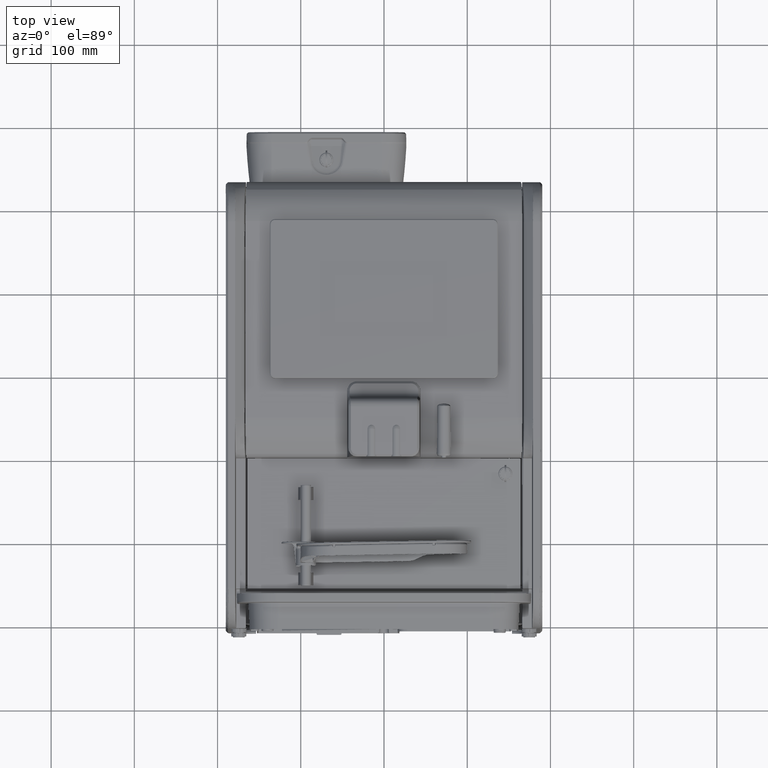
[diagram: clean part render]
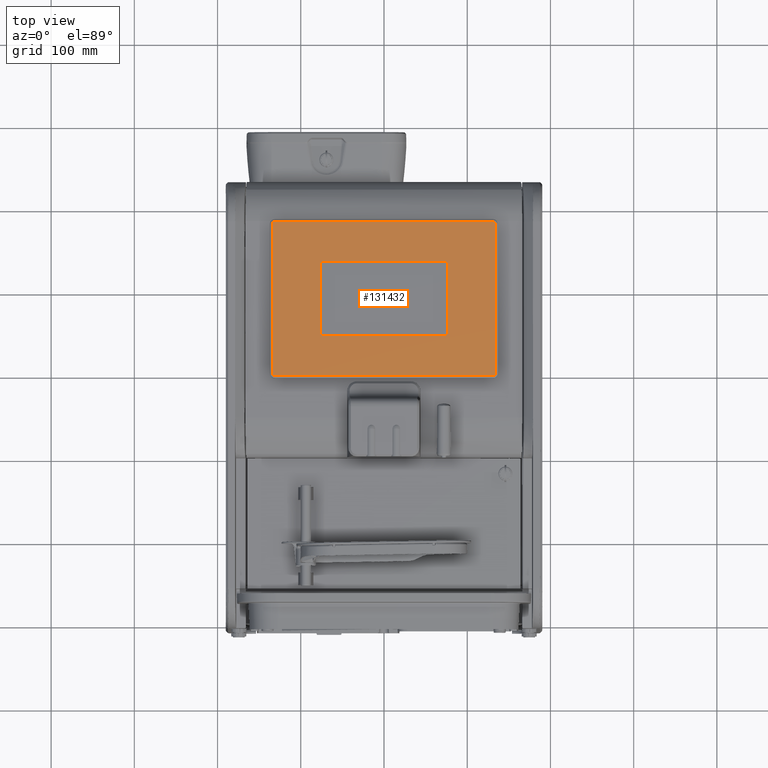
[diagram: same view with one face highlighted and labeled with its STEP entity id]
A machine part, top view. The second image highlights one B-rep face of the part: STEP entity #131432.
In plain terms, the highlighted planar face has unit normal (0, 0.1219, 0.9925).
Its self-contained STEP definition (entity closure, byte-faithful):
#2220=FACE_BOUND('',#33447,.T.);
#19583=CIRCLE('',#142121,3.);
#19584=CIRCLE('',#142124,3.);
#19585=CIRCLE('',#142127,3.);
#19586=CIRCLE('',#142130,3.);
#27201=FACE_OUTER_BOUND('',#33446,.T.);
#33446=EDGE_LOOP('',(#120800,#120801,#120802,#120803,#120804,#120805,#120806,
#120807));
#33447=EDGE_LOOP('',(#120808,#120809,#120810,#120811));
#42481=LINE('',#315502,#52340);
#42483=LINE('',#315506,#52342);
#42486=LINE('',#315511,#52345);
#42487=LINE('',#315513,#52346);
#42534=LINE('',#315651,#52393);
#42537=LINE('',#315659,#52396);
#42540=LINE('',#315667,#52399);
#42543=LINE('',#315674,#52402);
#52340=VECTOR('',#171083,10.);
#52342=VECTOR('',#171087,10.);
#52345=VECTOR('',#171092,10.);
#52346=VECTOR('',#171095,10.);
#52393=VECTOR('',#171238,10.);
#52396=VECTOR('',#171247,10.);
#52399=VECTOR('',#171256,10.);
#52402=VECTOR('',#171265,10.);
#67189=VERTEX_POINT('',#315499);
#67190=VERTEX_POINT('',#315501);
#67191=VERTEX_POINT('',#315505);
#67192=VERTEX_POINT('',#315509);
#67233=VERTEX_POINT('',#315644);
#67234=VERTEX_POINT('',#315646);
#67235=VERTEX_POINT('',#315650);
#67236=VERTEX_POINT('',#315654);
#67237=VERTEX_POINT('',#315658);
#67238=VERTEX_POINT('',#315662);
#67239=VERTEX_POINT('',#315666);
#67240=VERTEX_POINT('',#315670);
#88171=EDGE_CURVE('',#67190,#67189,#42481,.T.);
#88173=EDGE_CURVE('',#67191,#67190,#42483,.T.);
#88176=EDGE_CURVE('',#67189,#67192,#42486,.T.);
#88177=EDGE_CURVE('',#67192,#67191,#42487,.T.);
#88243=EDGE_CURVE('',#67234,#67233,#19583,.T.);
#88245=EDGE_CURVE('',#67235,#67234,#42534,.T.);
#88247=EDGE_CURVE('',#67236,#67235,#19584,.T.);
#88249=EDGE_CURVE('',#67237,#67236,#42537,.T.);
#88251=EDGE_CURVE('',#67238,#67237,#19585,.T.);
#88253=EDGE_CURVE('',#67239,#67238,#42540,.T.);
#88255=EDGE_CURVE('',#67240,#67239,#19586,.T.);
#88257=EDGE_CURVE('',#67233,#67240,#42543,.T.);
#120800=ORIENTED_EDGE('',*,*,#88249,.T.);
#120801=ORIENTED_EDGE('',*,*,#88247,.T.);
#120802=ORIENTED_EDGE('',*,*,#88245,.T.);
#120803=ORIENTED_EDGE('',*,*,#88243,.T.);
#120804=ORIENTED_EDGE('',*,*,#88257,.T.);
#120805=ORIENTED_EDGE('',*,*,#88255,.T.);
#120806=ORIENTED_EDGE('',*,*,#88253,.T.);
#120807=ORIENTED_EDGE('',*,*,#88251,.T.);
#120808=ORIENTED_EDGE('',*,*,#88176,.T.);
#120809=ORIENTED_EDGE('',*,*,#88177,.T.);
#120810=ORIENTED_EDGE('',*,*,#88173,.T.);
#120811=ORIENTED_EDGE('',*,*,#88171,.T.);
#125890=PLANE('',#142132);
#131432=ADVANCED_FACE('',(#27201,#2220),#125890,.T.);
#142121=AXIS2_PLACEMENT_3D('',#315647,#171233,#171234);
#142124=AXIS2_PLACEMENT_3D('',#315655,#171242,#171243);
#142127=AXIS2_PLACEMENT_3D('',#315663,#171251,#171252);
#142130=AXIS2_PLACEMENT_3D('',#315671,#171260,#171261);
#142132=AXIS2_PLACEMENT_3D('',#315675,#171266,#171267);
#171083=DIRECTION('',(5.59525203692155E-10,0.992546151641325,-0.121869343405123));
#171087=DIRECTION('',(-1.,5.63729146113913E-10,1.39333251422214E-14));
#171092=DIRECTION('',(1.,-5.63729030119429E-10,-1.39475674739103E-14));
#171095=DIRECTION('',(-5.59525496498228E-10,-0.992546151641325,0.121869343405123));
#171233=DIRECTION('center_axis',(6.8715130363483E-11,0.121869343405123,
0.992546151641325));
#171234=DIRECTION('ref_axis',(1.,-5.63729146113913E-10,-1.39333251422214E-14));
#171238=DIRECTION('',(-5.59525496498228E-10,-0.992546151641325,0.121869343405123));
#171242=DIRECTION('center_axis',(6.8715130363483E-11,0.121869343405123,
0.992546151641325));
#171243=DIRECTION('ref_axis',(-5.59525496498228E-10,-0.992546151641325,
0.121869343405123));
#171247=DIRECTION('',(-1.,5.63729078819403E-10,1.39415878690027E-14));
#171251=DIRECTION('center_axis',(6.8715130363483E-11,0.121869343405123,
0.992546151641325));
#171252=DIRECTION('ref_axis',(-1.,5.63729146113913E-10,1.39333251422214E-14));
#171256=DIRECTION('',(5.59525496498228E-10,0.992546151641325,-0.121869343405123));
#171260=DIRECTION('center_axis',(6.8715130363483E-11,0.121869343405123,
0.992546151641325));
#171261=DIRECTION('ref_axis',(5.59531417687692E-10,0.992546151641325,-0.121869343405123));
#171265=DIRECTION('',(1.,-5.63729146113913E-10,-1.39333251422214E-14));
#171266=DIRECTION('center_axis',(6.8715130363483E-11,0.121869343405123,
0.992546151641325));
#171267=DIRECTION('ref_axis',(1.,-5.63729146113913E-10,-1.39333251422214E-14));
#315499=CARTESIAN_POINT('',(-76.1500000180516,432.760319760362,230.611571686121));
#315501=CARTESIAN_POINT('',(-76.1500000689684,342.438619961001,241.701681935987));
#315502=CARTESIAN_POINT('',(-76.1500000307808,410.179894810521,233.384099248587));
#315505=CARTESIAN_POINT('',(75.8499999310316,342.438619875314,241.701681935985));
#315506=CARTESIAN_POINT('',(-38.1500000689684,342.438619939579,241.701681935986));
#315509=CARTESIAN_POINT('',(75.8499999819484,432.760319674675,230.611571686119));
#315511=CARTESIAN_POINT('',(37.8499999819484,432.760319696097,230.611571686119));
#315513=CARTESIAN_POINT('',(75.8499999437608,365.019044825154,238.929154373518));
#315644=CARTESIAN_POINT('',(-131.150000095826,294.796404713223,247.551410419434));
#315646=CARTESIAN_POINT('',(-134.150000094147,297.774043169838,247.185802389218));
#315647=CARTESIAN_POINT('Origin',(-131.150000094147,297.774043168147,247.185802389218));
#315650=CARTESIAN_POINT('',(-134.149999992873,477.424896616918,225.127451232891));
#315651=CARTESIAN_POINT('',(-134.150000094147,297.774043169838,247.185802389218));
#315654=CARTESIAN_POINT('',(-131.149999991194,480.40253507015,224.761843202675));
#315655=CARTESIAN_POINT('Origin',(-131.149999992873,477.424896615226,225.127451232891));
#315658=CARTESIAN_POINT('',(130.850000008806,480.402534922453,224.761843202672));
#315659=CARTESIAN_POINT('',(-131.149999991194,480.40253507015,224.761843202675));
#315662=CARTESIAN_POINT('',(133.850000007127,477.424896465838,225.127451232887));
#315663=CARTESIAN_POINT('Origin',(130.850000007127,477.424896467529,225.127451232887));
#315666=CARTESIAN_POINT('',(133.849999905853,297.774043018758,247.185802389215));
#315667=CARTESIAN_POINT('',(133.850000007127,477.424896465838,225.127451232887));
#315670=CARTESIAN_POINT('',(130.849999904174,294.796404565526,247.55141041943));
#315671=CARTESIAN_POINT('Origin',(130.849999905853,297.77404302045,247.185802389215));
#315674=CARTESIAN_POINT('',(130.849999904174,294.796404565526,247.55141041943));
#315675=CARTESIAN_POINT('Origin',(-0.150000043509999,387.599469817838,236.156626811053));